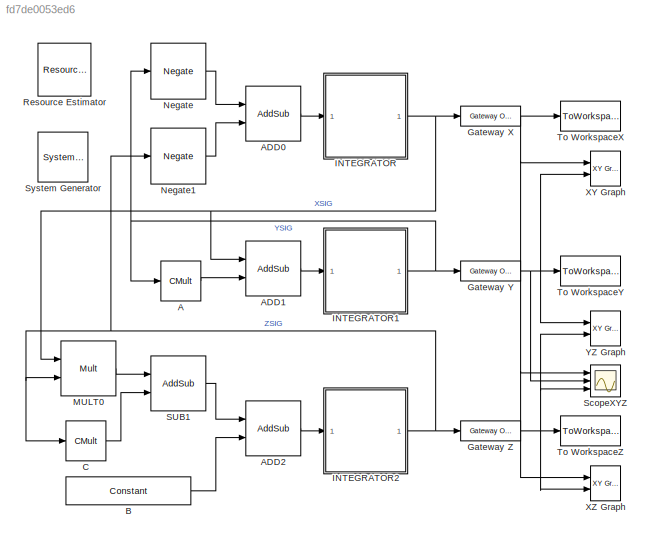
MODEL slx_fd7de0053ed6
KIND model
BLOCK [Reference]  System Generator  REF=xbsIndex_r4/ System Generator
  AttributesFormatString = System\nGenerator
  Impl_file = ISE Defaults
  Ports = []
  SourceBlock = xbsIndex_r4/ System Generator
  SourceType = Xilinx System Generator Block
  Synth_file = XST Defaults
  Tag = genX
  UserDataPersistent = on
  block_type = sysgen
  clock_wrapper = Clock Enables
  core_generation = According to Block Masks
  dbl_ovrd = According to Block Masks
  dcm_input_clock_period = 10
  deprecated_control = off
  directory = ./netlist
  eval_field = 0
  has_advanced_control = 0
  incr_netlist = off
  infoedit = System Generator
  package = fbg676
  part = xc7k325t
  proj_type = Project Navigator
  run_coregen = off
  sg_icon_stat = 50,50,0,0,token,white,0,58c5b5770fe5f7c311f53dbc6e73f0f6,right,,[ ],[ ]
  sg_mask_display = fprintf('','COMMENT: begin icon graphics');\npatch([0 50 50 0 0 ],[0 0 50 50 0 ],[1 1 1 ]);\npatch([1.6375 16.81 27.31 37.81 48.31 27.31 12.1375 1.6375 ],[36.655 36.655 47.155 36.655 47.155 47.155 47.155 36.655 ],[0.933333 0.203922 0.141176 ]);\npatch([12.1375 27.31 16.81 1.6375 12.1375 ],[26.155 26.155 36.655 36.655 26.155 ],[0.698039 0.0313725 0.219608 ]);\npatch([1.6375 16.81 27.31 12.1375 1.6375 ]...<+327ch>
  sggui_pos = 1077, 194, 464, 470
  simulink_period = 0.01
  speed = -3
  synthesis_tool = XST
  sysclk_period = 100
  testbench = off
  trim_vbits = Everywhere in SubSystem
  xilinxfamily = kintex7
BLOCK [Reference] A  REF=xbsIndex_r4/CMult
  Ports = [1, 1]
  SourceBlock = xbsIndex_r4/CMult
  SourceType = Xilinx Constant Multiplier Block
  arith_type = Signed  (2's comp)
  bin_pt = 52
  block_type = cmult
  block_version = 11.1
  const = 0.2
  const_bin_pt = 12
  const_n_bits = 32
  dbl_ovrd = off
  en = off
  exp_bits = 8
  float_type = Single
  fraction_bits = 24
  gui_display_data_type = Fixed-point
  has_advanced_control = 0
  latency = 0
  mem_type = Distributed RAM
  n_bits = 64
  overflow = Wrap
  pipeline = off
  precision = User Defined
  quantization = Round  (unbiased: +/- Inf)
  sg_icon_stat = 40,40,1,1,white,blue,2,39fd5357,right,,[ ],[ ]
  sg_mask_display = fprintf('','COMMENT: begin icon graphics');\npatch([0 40 0 0 ],[0 20 40 0 ],[0.77 0.82 0.91 ]);\nplot([0 40 0 0 ],[0 20 40 0 ]);\npatch([3.325 7.66 10.66 13.66 16.66 10.66 6.325 3.325 ],[23.33 23.33 26.33 23.33 26.33 26.33 26.33 23.33 ],[1 1 1 ]);\npatch([6.325 10.66 7.66 3.325 6.325 ],[20.33 20.33 23.33 23.33 20.33 ],[0.931 0.946 0.973 ]);\npatch([3.325 7.66 10.66 6.325 3.325 ],[17.33 17.33 20.33 20.3...<+310ch>
  sggui_pos = -1,-1,-1,-1
  use_behavioral_HDL = off
  xl_area = [0,0,0,0,0,0,0]
  xl_use_area = off
BLOCK [Reference] ADD0  REF=xbsIndex_r4/AddSub
  Ports = [2, 1]
  SourceBlock = xbsIndex_r4/AddSub
  SourceType = Xilinx Adder/Subtracter Block
  arith_type = Signed  (2's comp)
  bin_pt = 12
  block_type = addsub
  block_version = 11.1
  dbl_ovrd = off
  en = off
  has_advanced_control = 0
  hw_selection = Fabric
  latency = 0
  mode = Addition
  n_bits = 32
  overflow = Wrap
  pipelined = off
  precision = User Defined
  quantization = Round  (unbiased: +/- Inf)
  sg_icon_stat = 55,55,2,1,white,blue,0,e139daf6,right,,[ ],[ ]
  sg_mask_display = fprintf('','COMMENT: begin icon graphics');\npatch([0 55 55 0 0 ],[0 0 55 55 0 ],[0.77 0.82 0.91 ]);\nplot([0 55 55 0 0 ],[0 0 55 55 0 ]);\npatch([11.425 21.54 28.54 35.54 42.54 28.54 18.425 11.425 ],[34.77 34.77 41.77 34.77 41.77 41.77 41.77 34.77 ],[1 1 1 ]);\npatch([18.425 28.54 21.54 11.425 18.425 ],[27.77 27.77 34.77 34.77 27.77 ],[0.931 0.946 0.973 ]);\npatch([11.425 21.54 28.54 18.425 11.425 ],[...<+435ch>  <repeated x4 — deduplicated; at blocks: ADD0, ADD1, ADD2, SUB1>
  sggui_pos = 551,173,348,310
  use_behavioral_HDL = off
  use_carryin = off
  use_carryout = off
  xl_area = [0,0,0,0,0,0,0]
  xl_use_area = off
BLOCK [Reference] ADD1  REF=xbsIndex_r4/AddSub
  Ports = [2, 1]
  SourceBlock = xbsIndex_r4/AddSub
  SourceType = Xilinx Adder/Subtracter Block
  arith_type = Signed  (2's comp)
  bin_pt = 12
  block_type = addsub
  block_version = 11.1
  dbl_ovrd = off
  en = off
  has_advanced_control = 0
  hw_selection = Fabric
  latency = 0
  mode = Addition
  n_bits = 32
  overflow = Wrap
  pipelined = off
  precision = User Defined
  quantization = Round  (unbiased: +/- Inf)
  sg_icon_stat = 55,55,2,1,white,blue,0,e139daf6,right,,[ ],[ ]
  sggui_pos = 551,173,348,310
  use_behavioral_HDL = off
  use_carryin = off
  use_carryout = off
  xl_area = [0,0,0,0,0,0,0]
  xl_use_area = off
BLOCK [Reference] ADD2  REF=xbsIndex_r4/AddSub
  Ports = [2, 1]
  SourceBlock = xbsIndex_r4/AddSub
  SourceType = Xilinx Adder/Subtracter Block
  arith_type = Signed  (2's comp)
  bin_pt = 12
  block_type = addsub
  block_version = 11.1
  dbl_ovrd = off
  en = off
  has_advanced_control = 0
  hw_selection = Fabric
  latency = 0
  mode = Addition
  n_bits = 32
  overflow = Wrap
  pipelined = off
  precision = User Defined
  quantization = Round  (unbiased: +/- Inf)
  sg_icon_stat = 55,55,2,1,white,blue,0,e139daf6,right,,[ ],[ ]
  sggui_pos = 551,173,348,310
  use_behavioral_HDL = off
  use_carryin = off
  use_carryout = off
  xl_area = [0,0,0,0,0,0,0]
  xl_use_area = off
BLOCK [Reference] B  REF=xbsIndex_r4/Constant
  Ports = [0, 1]
  SourceBlock = xbsIndex_r4/Constant
  SourceType = Xilinx Constant Block Block
  arith_type = Signed (2's comp)
  bin_pt = 12
  block_type = constant
  carry = CIN
  const = 0.2
  dbl_ovrd = off
  dsp48_infoedit = The use of this block for DSP48 instructions is deprecated.  Please use the Opmode block.
  equ = P=C
  exp_width = 8
  explicit_period = off
  frac_width = 24
  gui_display_data_type = Fixed-point
  has_advanced_control = 0
  inp1 = P
  inp2 = PCIN>>17
  n_bits = 32
  opr = +
  opselect = C
  period = 1
  preci_type = Single
  sg_icon_stat = 125,28,0,1,white,blue,0,39470348,right,,[ ],[ ]
  sg_mask_display = fprintf('','COMMENT: begin icon graphics');\npatch([0 125 125 0 0 ],[0 0 28 28 0 ],[0.77 0.82 0.91 ]);\nplot([0 125 125 0 0 ],[0 0 28 28 0 ]);\npatch([53.1 58.88 62.88 66.88 70.88 62.88 57.1 53.1 ],[18.44 18.44 22.44 18.44 22.44 22.44 22.44 18.44 ],[1 1 1 ]);\npatch([57.1 62.88 58.88 53.1 57.1 ],[14.44 14.44 18.44 18.44 14.44 ],[0.931 0.946 0.973 ]);\npatch([53.1 58.88 62.88 57.1 53.1 ],[10.44 10.44 14...<+316ch>
  sggui_pos = 351,244,400,394
BLOCK [Reference] C  REF=xbsIndex_r4/CMult
  Ports = [1, 1]
  SourceBlock = xbsIndex_r4/CMult
  SourceType = Xilinx Constant Multiplier Block
  arith_type = Signed  (2's comp)
  bin_pt = 52
  block_type = cmult
  block_version = 11.1
  const = 5.7
  const_bin_pt = 12
  const_n_bits = 32
  dbl_ovrd = off
  en = off
  exp_bits = 8
  float_type = Single
  fraction_bits = 24
  gui_display_data_type = Fixed-point
  has_advanced_control = 0
  latency = 0
  mem_type = Distributed RAM
  n_bits = 64
  overflow = Wrap
  pipeline = off
  precision = User Defined
  quantization = Round  (unbiased: +/- Inf)
  sg_icon_stat = 40,40,1,1,white,blue,2,19e562e2,right,,[ ],[ ]
  sg_mask_display = fprintf('','COMMENT: begin icon graphics');\npatch([0 40 0 0 ],[0 20 40 0 ],[0.77 0.82 0.91 ]);\nplot([0 40 0 0 ],[0 20 40 0 ]);\npatch([3.325 7.66 10.66 13.66 16.66 10.66 6.325 3.325 ],[23.33 23.33 26.33 23.33 26.33 26.33 26.33 23.33 ],[1 1 1 ]);\npatch([6.325 10.66 7.66 3.325 6.325 ],[20.33 20.33 23.33 23.33 20.33 ],[0.931 0.946 0.973 ]);\npatch([3.325 7.66 10.66 6.325 3.325 ],[17.33 17.33 20.33 20.3...<+310ch>
  sggui_pos = 603,169,348,312
  use_behavioral_HDL = off
  xl_area = [0,0,0,0,0,0,0]
  xl_use_area = off
BLOCK [Reference] Gateway X  REF=xbsIndex_r4/Gateway Out
  DACChannel = '1'
  LOCs = {}
  Ports = [1, 1]
  SourceBlock = xbsIndex_r4/Gateway Out
  SourceType = Xilinx Gateway Out Block
  UseAsDAC = off
  block_type = gatewayout
  has_advanced_control = 0
  hdl_port = on
  infoedit = Gateway out block.  Converts Xilinx fixed-point or floating-point type inputs into ouputs of type Simulink integer, single, double, or fixed-point.<br><br>Hardware notes:  In hardware these blocks become top level output ports or are discarded, depending on how they are configured.  <repeated x3 — deduplicated; at blocks: Gateway X, Gateway Y, Gateway Z>
  inherit_from_input = off
  locs_specified = off
  sg_icon_stat = 60,20,1,1,white,yellow,1,cc31b7ac,right,,[ ],[ ]
  sg_mask_display = fprintf('','COMMENT: begin icon graphics');\npatch([0 60 60 0 0 ],[0 0 20 20 0 ],[0.95 0.93 0.65 ]);\nplot([0 60 60 0 0 ],[0 0 20 20 0 ]);\npatch([25.55 28.44 30.44 32.44 34.44 30.44 27.55 25.55 ],[12.22 12.22 14.22 12.22 14.22 14.22 14.22 12.22 ],[1 1 1 ]);\npatch([27.55 30.44 28.44 25.55 27.55 ],[10.22 10.22 12.22 12.22 10.22 ],[0.985 0.979 0.895 ]);\npatch([25.55 28.44 30.44 27.55 25.55 ],[8.22 8.22...<+384ch>  <repeated x3 — deduplicated; at blocks: Gateway X, Gateway Y, Gateway Z>
  sggui_pos = 113,173,336,402
  timing_constraint = None
  xl_area = [0,0,0,0,0,0,0]
  xl_use_area = off
BLOCK [Reference] Gateway Y  REF=xbsIndex_r4/Gateway Out
  DACChannel = '1'
  LOCs = {}
  Ports = [1, 1]
  SourceBlock = xbsIndex_r4/Gateway Out
  SourceType = Xilinx Gateway Out Block
  UseAsDAC = off
  block_type = gatewayout
  has_advanced_control = 0
  hdl_port = on
  inherit_from_input = off
  locs_specified = off
  sg_icon_stat = 60,20,1,1,white,yellow,1,cc31b7ac,right,,[ ],[ ]
  sggui_pos = -1,-1,-1,-1
  timing_constraint = None
  xl_area = [0,0,0,0,0,0,0]
  xl_use_area = off
BLOCK [Reference] Gateway Z  REF=xbsIndex_r4/Gateway Out
  DACChannel = '1'
  LOCs = {}
  Ports = [1, 1]
  SourceBlock = xbsIndex_r4/Gateway Out
  SourceType = Xilinx Gateway Out Block
  UseAsDAC = off
  block_type = gatewayout
  has_advanced_control = 0
  hdl_port = on
  inherit_from_input = off
  locs_specified = off
  sg_icon_stat = 60,20,1,1,white,yellow,1,cc31b7ac,right,,[ ],[ ]
  sggui_pos = -1,-1,-1,-1
  timing_constraint = None
  xl_area = [0,0,0,0,0,0,0]
  xl_use_area = off
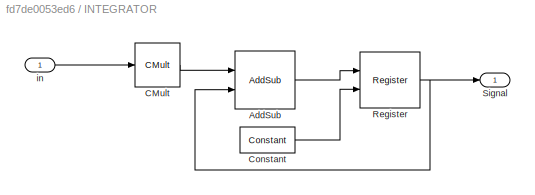
BLOCK [SubSystem] INTEGRATOR
  Ports = [1, 1]
  RequestExecContextInheritance = off
BLOCK [Reference] INTEGRATOR/AddSub  REF=xbsIndex_r4/AddSub
  Ports = [2, 1]
  SourceBlock = xbsIndex_r4/AddSub
  SourceType = Xilinx Adder/Subtracter Block
  arith_type = Signed  (2's comp)
  bin_pt = 42
  block_type = addsub
  dbl_ovrd = off
  en = off
  has_advanced_control = 0
  hw_selection = Fabric
  latency = 0
  mode = Addition
  n_bits = 64
  overflow = Wrap
  pipelined = off
  precision = User Defined
  quantization = Round  (unbiased: +/- Inf)
  sg_icon_stat = 60,58,2,1,white,blue,0,e139daf6,right,,[ ],[ ]
  sg_mask_display = fprintf('','COMMENT: begin icon graphics');\npatch([0 60 60 0 0 ],[0 0 58 58 0 ],[0.77 0.82 0.91 ]);\nplot([0 60 60 0 0 ],[0 0 58 58 0 ]);\npatch([12.2 23.76 31.76 39.76 47.76 31.76 20.2 12.2 ],[37.88 37.88 45.88 37.88 45.88 45.88 45.88 37.88 ],[1 1 1 ]);\npatch([20.2 31.76 23.76 12.2 20.2 ],[29.88 29.88 37.88 37.88 29.88 ],[0.931 0.946 0.973 ]);\npatch([12.2 23.76 31.76 20.2 12.2 ],[21.88 21.88 29.88 ...<+411ch>  <repeated x3 — deduplicated; at blocks: AddSub>
  sggui_pos = 758,320,348,319
  use_behavioral_HDL = off
  use_carryin = off
  use_carryout = off
  xl_area = [0,0,0,0,0,0,0]
  xl_use_area = off
BLOCK [Reference] INTEGRATOR/CMult  REF=xbsIndex_r4/CMult
  Ports = [1, 1]
  SourceBlock = xbsIndex_r4/CMult
  SourceType = Xilinx Constant Multiplier Block
  arith_type = Signed  (2's comp)
  bin_pt = 52
  block_type = cmult
  block_version = 11.1
  const = 0.01
  const_bin_pt = 42
  const_n_bits = 64
  dbl_ovrd = off
  en = off
  exp_bits = 8
  float_type = Single
  fraction_bits = 24
  gui_display_data_type = Fixed-point
  has_advanced_control = 0
  latency = 0
  mem_type = Distributed RAM
  n_bits = 64
  overflow = Wrap
  pipeline = off
  precision = User Defined
  quantization = Round  (unbiased: +/- Inf)
  sg_icon_stat = 45,44,1,1,white,blue,2,7844afae,right,,[ ],[ ]
  sg_mask_display = fprintf('','COMMENT: begin icon graphics');\npatch([0 45 0 0 ],[0 22 44 0 ],[0.77 0.82 0.91 ]);\nplot([0 45 0 0 ],[0 22 44 0 ]);\npatch([2.74 7.942 11.542 15.142 18.742 11.542 6.34 2.74 ],[25.996 25.996 29.596 25.996 29.596 29.596 29.596 25.996 ],[1 1 1 ]);\npatch([6.34 11.542 7.942 2.74 6.34 ],[22.396 22.396 25.996 25.996 22.396 ],[0.931 0.946 0.973 ]);\npatch([2.74 7.942 11.542 6.34 2.74 ],[18.796 18...<+337ch>  <repeated x3 — deduplicated; at blocks: CMult>
  sggui_pos = 172,240,348,417
  use_behavioral_HDL = off
  xl_area = [0,0,0,0,0,0,0]
  xl_use_area = off
BLOCK [Reference] INTEGRATOR/Constant  REF=xbsIndex_r4/Constant
  Ports = [0, 1]
  SourceBlock = xbsIndex_r4/Constant
  SourceType = Xilinx Constant Block Block
  arith_type = Boolean
  bin_pt = 14
  block_type = constant
  block_version = 11.1
  carry = CIN
  const = 0
  dbl_ovrd = off
  dsp48_infoedit = The use of this block for DSP48 instructions is deprecated.  Please use the Opmode block.
  equ = P=C
  exp_width = 8
  explicit_period = on
  frac_width = 24
  gui_display_data_type = Boolean
  has_advanced_control = 0
  inp1 = P
  inp2 = PCIN>>17
  n_bits = 32
  opr = +
  opselect = C
  period = 1
  preci_type = Single
  sg_icon_stat = 55,26,0,1,white,blue,0,bf4ddd8b,right,,[ ],[ ]
  sg_mask_display = fprintf('','COMMENT: begin icon graphics');\npatch([0 55 55 0 0 ],[0 0 26 26 0 ],[0.77 0.82 0.91 ]);\nplot([0 55 55 0 0 ],[0 0 26 26 0 ]);\npatch([20.325 24.66 27.66 30.66 33.66 27.66 23.325 20.325 ],[16.33 16.33 19.33 16.33 19.33 19.33 19.33 16.33 ],[1 1 1 ]);\npatch([23.325 27.66 24.66 20.325 23.325 ],[13.33 13.33 16.33 16.33 13.33 ],[0.931 0.946 0.973 ]);\npatch([20.325 24.66 27.66 23.325 20.325 ],[...<+323ch>  <repeated x3 — deduplicated; at blocks: Constant>
  sggui_pos = -1,-1,-1,-1
BLOCK [Reference] INTEGRATOR/Register  REF=xbsIndex_r4/Register
  Ports = [2, 1]
  SourceBlock = xbsIndex_r4/Register
  SourceType = Xilinx Register Block
  block_type = register
  block_version = 11.1
  dbl_ovrd = off
  en = off
  has_advanced_control = 0
  init = 5
  rst = on
  sg_icon_stat = 60,56,2,1,white,blue,0,140cc11c,right,,[ ],[ ]
  sg_mask_display = fprintf('','COMMENT: begin icon graphics');\npatch([0 60 60 0 0 ],[0 0 56 56 0 ],[0.77 0.82 0.91 ]);\nplot([0 60 60 0 0 ],[0 0 56 56 0 ]);\npatch([12.2 23.76 31.76 39.76 47.76 31.76 20.2 12.2 ],[36.88 36.88 44.88 36.88 44.88 44.88 44.88 36.88 ],[1 1 1 ]);\npatch([20.2 31.76 23.76 12.2 20.2 ],[28.88 28.88 36.88 36.88 28.88 ],[0.931 0.946 0.973 ]);\npatch([12.2 23.76 31.76 20.2 12.2 ],[20.88 20.88 28.88 ...<+435ch>  <repeated x3 — deduplicated; at blocks: Register>
  sggui_pos = 879,333,348,192
  xl_area = [0,0,0,0,0,0,0]
  xl_use_area = off
BLOCK [Outport] INTEGRATOR/Signal
  IconDisplay = Port number
  SampleTime = 0.01
BLOCK [Inport] INTEGRATOR/in
  IconDisplay = Port number
  SampleTime = 0.01
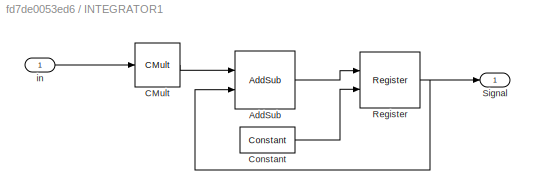
BLOCK [SubSystem] INTEGRATOR1
  Ports = [1, 1]
  RequestExecContextInheritance = off
BLOCK [Reference] INTEGRATOR1/AddSub  REF=xbsIndex_r4/AddSub
  Ports = [2, 1]
  SourceBlock = xbsIndex_r4/AddSub
  SourceType = Xilinx Adder/Subtracter Block
  arith_type = Signed  (2's comp)
  bin_pt = 42
  block_type = addsub
  dbl_ovrd = off
  en = off
  has_advanced_control = 0
  hw_selection = Fabric
  latency = 0
  mode = Addition
  n_bits = 64
  overflow = Wrap
  pipelined = off
  precision = User Defined
  quantization = Round  (unbiased: +/- Inf)
  sg_icon_stat = 60,58,2,1,white,blue,0,e139daf6,right,,[ ],[ ]
  sggui_pos = 758,320,348,319
  use_behavioral_HDL = off
  use_carryin = off
  use_carryout = off
  xl_area = [0,0,0,0,0,0,0]
  xl_use_area = off
BLOCK [Reference] INTEGRATOR1/CMult  REF=xbsIndex_r4/CMult
  Ports = [1, 1]
  SourceBlock = xbsIndex_r4/CMult
  SourceType = Xilinx Constant Multiplier Block
  arith_type = Signed  (2's comp)
  bin_pt = 52
  block_type = cmult
  block_version = 11.1
  const = 0.01
  const_bin_pt = 42
  const_n_bits = 64
  dbl_ovrd = off
  en = off
  exp_bits = 8
  float_type = Single
  fraction_bits = 24
  gui_display_data_type = Fixed-point
  has_advanced_control = 0
  latency = 0
  mem_type = Distributed RAM
  n_bits = 64
  overflow = Wrap
  pipeline = off
  precision = User Defined
  quantization = Round  (unbiased: +/- Inf)
  sg_icon_stat = 45,44,1,1,white,blue,2,7844afae,right,,[ ],[ ]
  sggui_pos = 172,240,348,417
  use_behavioral_HDL = off
  xl_area = [0,0,0,0,0,0,0]
  xl_use_area = off
BLOCK [Reference] INTEGRATOR1/Constant  REF=xbsIndex_r4/Constant
  Ports = [0, 1]
  SourceBlock = xbsIndex_r4/Constant
  SourceType = Xilinx Constant Block Block
  arith_type = Boolean
  bin_pt = 14
  block_type = constant
  block_version = 11.1
  carry = CIN
  const = 0
  dbl_ovrd = off
  dsp48_infoedit = The use of this block for DSP48 instructions is deprecated.  Please use the Opmode block.
  equ = P=C
  exp_width = 8
  explicit_period = on
  frac_width = 24
  gui_display_data_type = Boolean
  has_advanced_control = 0
  inp1 = P
  inp2 = PCIN>>17
  n_bits = 32
  opr = +
  opselect = C
  period = 1
  preci_type = Single
  sg_icon_stat = 55,26,0,1,white,blue,0,bf4ddd8b,right,,[ ],[ ]
  sggui_pos = -1,-1,-1,-1
BLOCK [Reference] INTEGRATOR1/Register  REF=xbsIndex_r4/Register
  Ports = [2, 1]
  SourceBlock = xbsIndex_r4/Register
  SourceType = Xilinx Register Block
  block_type = register
  block_version = 11.1
  dbl_ovrd = off
  en = off
  has_advanced_control = 0
  init = -5
  rst = on
  sg_icon_stat = 60,56,2,1,white,blue,0,140cc11c,right,,[ ],[ ]
  sggui_pos = 879,333,348,192
  xl_area = [0,0,0,0,0,0,0]
  xl_use_area = off
BLOCK [Outport] INTEGRATOR1/Signal
  IconDisplay = Port number
  SampleTime = 0.01
BLOCK [Inport] INTEGRATOR1/in
  IconDisplay = Port number
  SampleTime = 0.01
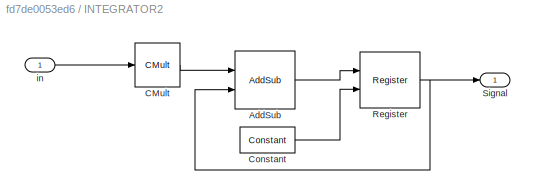
BLOCK [SubSystem] INTEGRATOR2
  Ports = [1, 1]
  RequestExecContextInheritance = off
BLOCK [Reference] INTEGRATOR2/AddSub  REF=xbsIndex_r4/AddSub
  Ports = [2, 1]
  SourceBlock = xbsIndex_r4/AddSub
  SourceType = Xilinx Adder/Subtracter Block
  arith_type = Signed  (2's comp)
  bin_pt = 42
  block_type = addsub
  dbl_ovrd = off
  en = off
  has_advanced_control = 0
  hw_selection = Fabric
  latency = 0
  mode = Addition
  n_bits = 64
  overflow = Wrap
  pipelined = off
  precision = User Defined
  quantization = Round  (unbiased: +/- Inf)
  sg_icon_stat = 60,58,2,1,white,blue,0,e139daf6,right,,[ ],[ ]
  sggui_pos = 758,320,348,319
  use_behavioral_HDL = off
  use_carryin = off
  use_carryout = off
  xl_area = [0,0,0,0,0,0,0]
  xl_use_area = off
BLOCK [Reference] INTEGRATOR2/CMult  REF=xbsIndex_r4/CMult
  Ports = [1, 1]
  SourceBlock = xbsIndex_r4/CMult
  SourceType = Xilinx Constant Multiplier Block
  arith_type = Signed  (2's comp)
  bin_pt = 52
  block_type = cmult
  block_version = 11.1
  const = 0.01
  const_bin_pt = 42
  const_n_bits = 64
  dbl_ovrd = off
  en = off
  exp_bits = 8
  float_type = Single
  fraction_bits = 24
  gui_display_data_type = Fixed-point
  has_advanced_control = 0
  latency = 0
  mem_type = Distributed RAM
  n_bits = 64
  overflow = Wrap
  pipeline = off
  precision = User Defined
  quantization = Round  (unbiased: +/- Inf)
  sg_icon_stat = 45,44,1,1,white,blue,2,7844afae,right,,[ ],[ ]
  sggui_pos = 172,240,348,417
  use_behavioral_HDL = off
  xl_area = [0,0,0,0,0,0,0]
  xl_use_area = off
BLOCK [Reference] INTEGRATOR2/Constant  REF=xbsIndex_r4/Constant
  Ports = [0, 1]
  SourceBlock = xbsIndex_r4/Constant
  SourceType = Xilinx Constant Block Block
  arith_type = Boolean
  bin_pt = 14
  block_type = constant
  block_version = 11.1
  carry = CIN
  const = 0
  dbl_ovrd = off
  dsp48_infoedit = The use of this block for DSP48 instructions is deprecated.  Please use the Opmode block.
  equ = P=C
  exp_width = 8
  explicit_period = on
  frac_width = 24
  gui_display_data_type = Boolean
  has_advanced_control = 0
  inp1 = P
  inp2 = PCIN>>17
  n_bits = 32
  opr = +
  opselect = C
  period = 1
  preci_type = Single
  sg_icon_stat = 55,26,0,1,white,blue,0,bf4ddd8b,right,,[ ],[ ]
  sggui_pos = -1,-1,-1,-1
BLOCK [Reference] INTEGRATOR2/Register  REF=xbsIndex_r4/Register
  Ports = [2, 1]
  SourceBlock = xbsIndex_r4/Register
  SourceType = Xilinx Register Block
  block_type = register
  block_version = 11.1
  dbl_ovrd = off
  en = off
  has_advanced_control = 0
  init = 0
  rst = on
  sg_icon_stat = 60,56,2,1,white,blue,0,140cc11c,right,,[ ],[ ]
  sggui_pos = 879,333,348,192
  xl_area = [0,0,0,0,0,0,0]
  xl_use_area = off
BLOCK [Outport] INTEGRATOR2/Signal
  IconDisplay = Port number
  SampleTime = 0.01
BLOCK [Inport] INTEGRATOR2/in
  IconDisplay = Port number
  SampleTime = 0.01
BLOCK [Reference] MULT0  REF=xbsIndex_r4/Mult
  Ports = [2, 1]
  SourceBlock = xbsIndex_r4/Mult
  SourceType = Xilinx Multiplier Block
  arith_type = Signed  (2's comp)
  bin_pt = 12
  block_type = mult
  dbl_ovrd = off
  en = off
  has_advanced_control = 0
  infoedit = Hardware notes: To check for the optimum internal pipeline stages of the dedicated multiplier you must select 'Test for optimum pipelining'.<br><br>Optimization Goal: For implementation into device fabric (LUTs), the Speed or Area optimization will take effect only if it's supported by IP for the particular device family. Otherwise, the results will be identical regardless of the selection.
  latency = 0
  n_bits = 32
  opt = Speed
  optimum_pipeline = off
  overflow = Wrap
  pipeline = on
  placement_style = Triangular
  precision = User Defined
  quantization = Truncate
  sg_icon_stat = 55,55,2,1,white,blue,0,658d65c4,right,,[ ],[ ]
  sg_mask_display = fprintf('','COMMENT: begin icon graphics');\npatch([0 55 55 0 0 ],[0 0 55 55 0 ],[0.77 0.82 0.91 ]);\nplot([0 55 55 0 0 ],[0 0 55 55 0 ]);\npatch([11.425 21.54 28.54 35.54 42.54 28.54 18.425 11.425 ],[34.77 34.77 41.77 34.77 41.77 41.77 41.77 34.77 ],[1 1 1 ]);\npatch([18.425 28.54 21.54 11.425 18.425 ],[27.77 27.77 34.77 34.77 27.77 ],[0.931 0.946 0.973 ]);\npatch([11.425 21.54 28.54 18.425 11.425 ],[...<+464ch>
  sggui_pos = 688,153,348,577
  use_behavioral_HDL = off
  use_embedded = on
  use_rpm = on
  xl_area = [0,0,0,0,0,0,0]
  xl_use_area = off
BLOCK [Reference] Negate  REF=xbsIndex_r4/Negate
  Ports = [1, 1]
  SourceBlock = xbsIndex_r4/Negate
  SourceType = Xilinx Negate Block Block
  arith_type = Signed  (2's comp)
  bin_pt = 12
  block_type = negate
  dbl_ovrd = off
  en = off
  has_advanced_control = 0
  latency = 0
  n_bits = 32
  overflow = Wrap
  precision = User Defined
  quantization = Round  (unbiased: +/- Inf)
  sg_icon_stat = 55,56,1,1,white,blue,0,36bd7045,right,,[ ],[ ]
  sg_mask_display = fprintf('','COMMENT: begin icon graphics');\npatch([0 55 55 0 0 ],[0 0 56 56 0 ],[0.77 0.82 0.91 ]);\nplot([0 55 55 0 0 ],[0 0 56 56 0 ]);\npatch([11.425 21.54 28.54 35.54 42.54 28.54 18.425 11.425 ],[35.77 35.77 42.77 35.77 42.77 42.77 42.77 35.77 ],[1 1 1 ]);\npatch([18.425 28.54 21.54 11.425 18.425 ],[28.77 28.77 35.77 35.77 28.77 ],[0.931 0.946 0.973 ]);\npatch([11.425 21.54 28.54 18.425 11.425 ],[...<+336ch>
  sggui_pos = -1,-1,-1,-1
  xl_area = [0,0,0,0,0,0,0]
  xl_use_area = off
BLOCK [Reference] Negate1  REF=xbsIndex_r4/Negate
  Ports = [1, 1]
  SourceBlock = xbsIndex_r4/Negate
  SourceType = Xilinx Negate Block Block
  arith_type = Signed  (2's comp)
  bin_pt = 12
  block_type = negate
  dbl_ovrd = off
  en = off
  has_advanced_control = 0
  latency = 0
  n_bits = 32
  overflow = Wrap
  precision = User Defined
  quantization = Round  (unbiased: +/- Inf)
  sg_icon_stat = 55,56,1,1,white,blue,0,36bd7045,right,,[ ],[ ]
  sg_mask_display = fprintf('','COMMENT: begin icon graphics');\npatch([0 55 55 0 0 ],[0 0 56 56 0 ],[0.77 0.82 0.91 ]);\nplot([0 55 55 0 0 ],[0 0 56 56 0 ]);\npatch([11.425 21.54 28.54 35.54 42.54 28.54 18.425 11.425 ],[35.77 35.77 42.77 35.77 42.77 42.77 42.77 35.77 ],[1 1 1 ]);\npatch([18.425 28.54 21.54 11.425 18.425 ],[28.77 28.77 35.77 35.77 28.77 ],[0.931 0.946 0.973 ]);\npatch([11.425 21.54 28.54 18.425 11.425 ],[...<+336ch>
  sggui_pos = -1,-1,-1,-1
  xl_area = [0,0,0,0,0,0,0]
  xl_use_area = off
BLOCK [Reference] Resource Estimator  REF=xbsIndex_r4/Resource Estimator
  AttributesFormatString = Resource\nEstimator
  BRAMs = 20
  EBMs = 10
  FFs = 500
  IOBs = 48
  LUTs = 500
  Ports = []
  Slices = 100
  SourceBlock = xbsIndex_r4/Resource Estimator
  SourceType = Xilinx Resource Estimator Block
  TBUFs = 0
  Tag = resEstTag
  block_type = resource_estimator
  est_options = Estimate
  has_advanced_control = 0
  sg_icon_stat = 53,53,-1,-1,blue,white,0,07734,right,,[ ],[ ]
  sg_mask_display = fprintf('','COMMENT: begin icon graphics');\npatch([0 53 53 0 0 ],[0 0 53 53 0 ],[1 1 1 ]);\nplot([0 53 53 0 0 ],[0 0 53 53 0 ]);\npatch([10.425 20.54 27.54 34.54 41.54 27.54 17.425 10.425 ],[33.77 33.77 40.77 33.77 40.77 40.77 40.77 33.77 ],[0.839 0.874 0.937 ]);\npatch([17.425 27.54 20.54 10.425 17.425 ],[26.77 26.77 33.77 33.77 26.77 ],[0.77 0.82 0.91 ]);\npatch([10.425 20.54 27.54 17.425 10.425 ],[...<+293ch>
  sggui_pos = 608,656,336,292
  xl_use_estimator_area = off
BLOCK [Reference] SUB1  REF=xbsIndex_r4/AddSub
  Ports = [2, 1]
  SourceBlock = xbsIndex_r4/AddSub
  SourceType = Xilinx Adder/Subtracter Block
  arith_type = Signed  (2's comp)
  bin_pt = 12
  block_type = addsub
  block_version = 11.1
  dbl_ovrd = off
  en = off
  has_advanced_control = 0
  hw_selection = Fabric
  latency = 0
  mode = Subtraction
  n_bits = 32
  overflow = Wrap
  pipelined = off
  precision = User Defined
  quantization = Round  (unbiased: +/- Inf)
  sg_icon_stat = 55,55,2,1,white,blue,0,32e1f85f,right,,[ ],[ ]
  sggui_pos = 551,173,348,310
  use_behavioral_HDL = off
  use_carryin = off
  use_carryout = off
  xl_area = [0,0,0,0,0,0,0]
  xl_use_area = off
BLOCK [Scope] ScopeXYZ
  DataFormat = StructureWithTime
  Description = XYZ in time
  Floating = off
  MaxDataPoints = 500000
  NumInputPorts = 3
  Ports = [3]
  SampleTime = 0
  ShowLegends = off
  TimeRange = 5000
  YMax = 20~15~100
  YMin = -20~-20~0
BLOCK [ToWorkspace] To WorkspaceX
  MaxDataPoints = inf
  Ports = [1]
  SampleTime = 0.01
  VariableName = X
BLOCK [ToWorkspace] To WorkspaceY
  MaxDataPoints = inf
  Ports = [1]
  SampleTime = 0.01
  VariableName = Y
BLOCK [ToWorkspace] To WorkspaceZ
  MaxDataPoints = inf
  Ports = [1]
  SampleTime = 0.01
  VariableName = Z
BLOCK [Reference] XY Graph  REF=simulink/Sinks/XY Graph
  Ports = [2]
  SourceBlock = simulink/Sinks/XY Graph
  SourceType = XY scope.
  st = -1
  xmax = 30
  xmin = -30
  ymax = 30
  ymin = -30
BLOCK [Reference] XZ Graph  REF=simulink/Sinks/XY Graph
  Ports = [2]
  SourceBlock = simulink/Sinks/XY Graph
  SourceType = XY scope.
  st = -1
  xmax = 30
  xmin = -30
  ymax = 100
  ymin = -5
BLOCK [Reference] YZ Graph  REF=simulink/Sinks/XY Graph
  Ports = [2]
  SourceBlock = simulink/Sinks/XY Graph
  SourceType = XY scope.
  st = -1
  xmax = 30
  xmin = -30
  ymax = 100
  ymin = -5
LINE A:1 -> ADD1:2
LINE ADD0:1 -> INTEGRATOR:1
LINE ADD1:1 -> INTEGRATOR1:1
LINE ADD2:1 -> INTEGRATOR2:1
LINE B:1 -> ADD2:2
LINE C:1 -> SUB1:2
NET Gateway X:1 -> ScopeXYZ:1, To WorkspaceX:1, XY Graph:1, XZ Graph:1
NET Gateway Y:1 -> ScopeXYZ:2, To WorkspaceY:1, XY Graph:2, YZ Graph:1
NET Gateway Z:1 -> ScopeXYZ:3, To WorkspaceZ:1, XZ Graph:2, YZ Graph:2
LINE INTEGRATOR/AddSub:1 -> INTEGRATOR/Register:1
LINE INTEGRATOR/CMult:1 -> INTEGRATOR/AddSub:1
LINE INTEGRATOR/Constant:1 -> INTEGRATOR/Register:2
NET INTEGRATOR/Register:1 -> INTEGRATOR/AddSub:2, INTEGRATOR/Signal:1
LINE INTEGRATOR/in:1 -> INTEGRATOR/CMult:1
LINE INTEGRATOR1/AddSub:1 -> INTEGRATOR1/Register:1
LINE INTEGRATOR1/CMult:1 -> INTEGRATOR1/AddSub:1
LINE INTEGRATOR1/Constant:1 -> INTEGRATOR1/Register:2
NET INTEGRATOR1/Register:1 -> INTEGRATOR1/AddSub:2, INTEGRATOR1/Signal:1
LINE INTEGRATOR1/in:1 -> INTEGRATOR1/CMult:1
NET INTEGRATOR1:1 -> A:1, Gateway Y:1, Negate:1
LINE INTEGRATOR2/AddSub:1 -> INTEGRATOR2/Register:1
LINE INTEGRATOR2/CMult:1 -> INTEGRATOR2/AddSub:1
LINE INTEGRATOR2/Constant:1 -> INTEGRATOR2/Register:2
NET INTEGRATOR2/Register:1 -> INTEGRATOR2/AddSub:2, INTEGRATOR2/Signal:1
LINE INTEGRATOR2/in:1 -> INTEGRATOR2/CMult:1
NET INTEGRATOR2:1 -> C:1, Gateway Z:1, MULT0:2, Negate1:1
NET INTEGRATOR:1 -> ADD1:1, Gateway X:1, MULT0:1
LINE MULT0:1 -> SUB1:1
LINE Negate1:1 -> ADD0:2
LINE Negate:1 -> ADD0:1
LINE SUB1:1 -> ADD2:1
note: NET lines group one-source signal fan-out (src -> all destinations, sorted); 1:1 wires keep LINE
